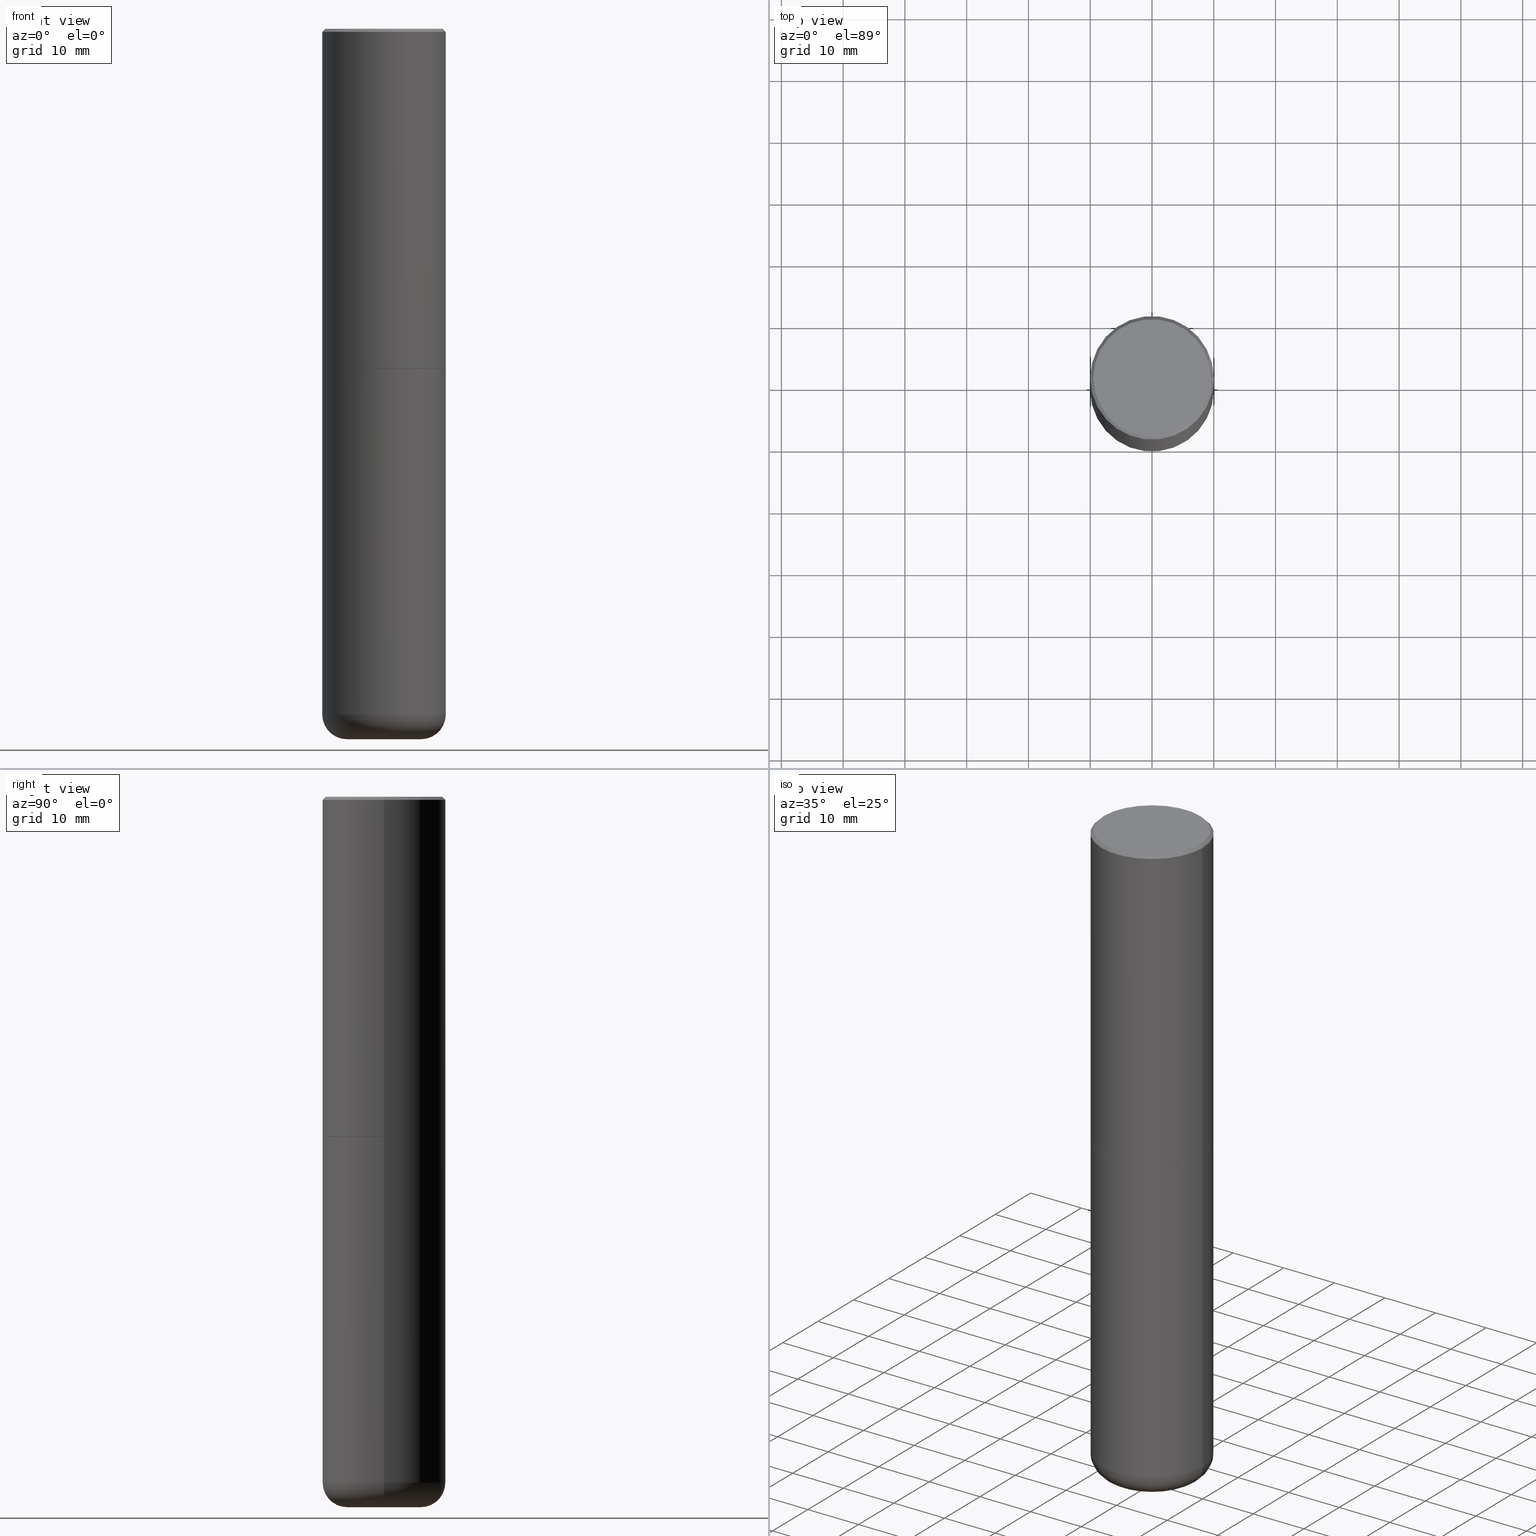
[diagram: canonical four-view strip — front | top / right | iso, engineering-drawing reading convention]
A machine part, canonical four-view strip (front | top / right | iso — engineering-drawing reading convention). The complete STEP part file that produces these views, byte-faithful:
ISO-10303-21;
HEADER;
FILE_DESCRIPTION (( 'STEP AP203' ),
    '1' );
FILE_NAME ('74836.STEP',
    '2024-05-02T19:22:35',
    ( '' ),
    ( '' ),
    'SwSTEP 2.0',
    'SolidWorks 2023',
    '' );
FILE_SCHEMA (( 'CONFIG_CONTROL_DESIGN' ));
ENDSEC;

DATA;
#1 = CIRCLE ( 'NONE', #383, 0.2362000000000000766 ) ;
#2 = EDGE_LOOP ( 'NONE', ( #82, #123, #97, #173 ) ) ;
#3 = APPROVAL_DATE_TIME ( #388, #62 ) ;
#4 = VERTEX_POINT ( 'NONE', #89 ) ;
#5 = CC_DESIGN_PERSON_AND_ORGANIZATION_ASSIGNMENT ( #322, #231, ( #57 ) ) ;
#6 = PLANE ( 'NONE',  #85 ) ;
#7 = FACE_OUTER_BOUND ( 'NONE', #393, .T. ) ;
#8 = DIRECTION ( 'NONE',  ( 1.000000000000000000, -6.982962677686269077E-15, 0.000000000000000000 ) ) ;
#9 = AXIS2_PLACEMENT_3D ( 'NONE', #187, #181, #296 ) ;
#10 = LOCAL_TIME ( 15, 22, 35.00000000000000000, #255 ) ;
#11 = CARTESIAN_POINT ( 'NONE',  ( 2.609533152651356620E-15, 0.3736999999999999211, -1.191650995338022328E-15 ) ) ;
#12 = CARTESIAN_POINT ( 'NONE',  ( -5.532412495976664402E-45, 7.898818803016371119E-31, 2.262311619753217762E-16 ) ) ;
#13 = CARTESIAN_POINT ( 'NONE',  ( 1.107210456688382298E-28, -1.580803090974622389E-14, -4.527599999999999625 ) ) ;
#14 = DIRECTION ( 'NONE',  ( -2.445468806185136877E-29, 3.491481338843145188E-15, 1.000000000000000000 ) ) ;
#15 = CYLINDRICAL_SURFACE ( 'NONE', #233, 0.3937000000000001054 ) ;
#16 = VERTEX_POINT ( 'NONE', #315 ) ;
#17 = DIRECTION ( 'NONE',  ( 1.000000000000000000, -6.982962677686265133E-15, 0.000000000000000000 ) ) ;
#18 = CLOSED_SHELL ( 'NONE', ( #286, #213, #94, #245, #154, #258 ) ) ;
#19 = LINE ( 'NONE', #23, #279 ) ;
#20 = CC_DESIGN_APPROVAL ( #253, ( #328 ) ) ;
#21 = ORGANIZATION ( 'UNSPECIFIED', 'UNSPECIFIED', '' ) ;
#22 = ORIENTED_EDGE ( 'NONE', *, *, #291, .F. ) ;
#23 = CARTESIAN_POINT ( 'NONE',  ( 0.3937000000000002164, -2.749192406205084794E-15, 1.919750796630861012E-29 ) ) ;
#24 = COORDINATED_UNIVERSAL_TIME_OFFSET ( 5, 0, .BEHIND. ) ;
#25 = ADVANCED_FACE ( 'NONE', ( #300 ), #56, .T. ) ;
#26 = ORIENTED_EDGE ( 'NONE', *, *, #291, .T. ) ;
#27 = ORIENTED_EDGE ( 'NONE', *, *, #122, .T. ) ;
#28 = CIRCLE ( 'NONE', #236, 0.1575000000000000566 ) ;
#29 = CC_DESIGN_PERSON_AND_ORGANIZATION_ASSIGNMENT ( #64, #293, ( #96 ) ) ;
#30 = EDGE_CURVE ( 'NONE', #4, #214, #251, .T. ) ;
#31 = DIRECTION ( 'NONE',  ( 1.000000000000000000, -6.982962677686261977E-15, 4.883557194083110659E-29 ) ) ;
#32 = CC_DESIGN_PERSON_AND_ORGANIZATION_ASSIGNMENT ( #222, #212, ( #328 ) ) ;
#33 = AXIS2_PLACEMENT_3D ( 'NONE', #51, #366, #116 ) ;
#34 = CARTESIAN_POINT ( 'NONE',  ( 1.068694322990966450E-28, -1.525812259887842897E-14, -4.370099999999998985 ) ) ;
#35 = VERTEX_POINT ( 'NONE', #42 ) ;
#36 =( CONVERSION_BASED_UNIT ( 'INCH', #194 ) LENGTH_UNIT ( ) NAMED_UNIT ( #128 ) );
#37 = CARTESIAN_POINT ( 'NONE',  ( 5.295418152913293224E-29, -7.560453691130945845E-15, -2.165399999999999547 ) ) ;
#38 = CC_DESIGN_DATE_AND_TIME_ASSIGNMENT ( #267, #168, ( #328 ) ) ;
#39 = AXIS2_PLACEMENT_3D ( 'NONE', #133, #335, #40 ) ;
#40 = DIRECTION ( 'NONE',  ( -1.000000000000000000, 6.982962677686266711E-15, 0.000000000000000000 ) ) ;
#41 = CIRCLE ( 'NONE', #205, 0.3937000000000001054 ) ;
#42 = CARTESIAN_POINT ( 'NONE',  ( -0.3937000000000002720, -1.015989167596965718E-15, -2.164399999999999658 ) ) ;
#43 = FACE_OUTER_BOUND ( 'NONE', #196, .T. ) ;
#44 = CARTESIAN_POINT ( 'NONE',  ( 0.3937000000000001054, -2.749192406205084005E-15, 1.919750796630860452E-29 ) ) ;
#45 = VERTEX_POINT ( 'NONE', #141 ) ;
#46 = ORIENTED_EDGE ( 'NONE', *, *, #104, .F. ) ;
#47 = DIRECTION ( 'NONE',  ( -2.445468806185136877E-29, 3.491481338843145188E-15, 1.000000000000000000 ) ) ;
#48 = ORIENTED_EDGE ( 'NONE', *, *, #283, .T. ) ;
#49 = CARTESIAN_POINT ( 'NONE',  ( -0.3937000000000001054, 2.679362779428220707E-15, -0.02000000000000008715 ) ) ;
#50 = CONICAL_SURFACE ( 'NONE', #9, 0.3937000000000001054, 0.7853981633974453924 ) ;
#51 = CARTESIAN_POINT ( 'NONE',  ( 4.890937612370294178E-31, -6.982962677686321191E-17, -0.02000000000000008715 ) ) ;
#52 = LOCAL_TIME ( 15, 22, 35.00000000000000000, #200 ) ;
#53 = EDGE_LOOP ( 'NONE', ( #150, #113, #147, #342 ) ) ;
#54 = DIRECTION ( 'NONE',  ( -2.445468806185136597E-29, 3.491481338843145583E-15, 1.000000000000000000 ) ) ;
#55 = EDGE_CURVE ( 'NONE', #238, #290, #400, .T. ) ;
#56 = CONICAL_SURFACE ( 'NONE', #379, 0.3926999999999999935, 0.7853981633975507526 ) ;
#57 = PRODUCT_DEFINITION_FORMATION_WITH_SPECIFIED_SOURCE ( 'ANY', '', #298, .NOT_KNOWN. ) ;
#58 = EDGE_CURVE ( 'NONE', #290, #238, #414, .T. ) ;
#59 = CALENDAR_DATE ( 2024, 2, 5 ) ;
#60 = CARTESIAN_POINT ( 'NONE',  ( 0.000000000000000000, 0.000000000000000000, 0.000000000000000000 ) ) ;
#61 = EDGE_CURVE ( 'NONE', #45, #354, #357, .T. ) ;
#62 = APPROVAL ( #321, 'UNSPECIFIED' ) ;
#63 = TOROIDAL_SURFACE ( 'NONE', #256, 0.2362000000000000210, 0.1575000000000000844 ) ;
#64 = PERSON_AND_ORGANIZATION ( #411, #21 ) ;
#65 = APPROVAL_ROLE ( '' ) ;
#66 = ORIENTED_EDGE ( 'NONE', *, *, #405, .T. ) ;
#67 = AXIS2_PLACEMENT_3D ( 'NONE', #201, #294, #8 ) ;
#68 = AXIS2_PLACEMENT_3D ( 'NONE', #216, #313, #280 ) ;
#69 = PLANE ( 'NONE',  #325 ) ;
#70 = ORIENTED_EDGE ( 'NONE', *, *, #235, .F. ) ;
#71 = CARTESIAN_POINT ( 'NONE',  ( -0.3937000000000001054, -1.246071584819091497E-14, -4.370099999999998985 ) ) ;
#72 = DIRECTION ( 'NONE',  ( -2.445468806185136597E-29, 3.491481338843145583E-15, 1.000000000000000000 ) ) ;
#73 = CARTESIAN_POINT ( 'NONE',  ( 0.3937000000000001054, -2.770807688499516128E-15, -0.02000000000000008715 ) ) ;
#74 = DESIGN_CONTEXT ( 'detailed design', #124, 'design' ) ;
#75 = FACE_OUTER_BOUND ( 'NONE', #131, .T. ) ;
#76 = AXIS2_PLACEMENT_3D ( 'NONE', #234, #323, #301 ) ;
#77 =( GEOMETRIC_REPRESENTATION_CONTEXT ( 3 ) GLOBAL_UNCERTAINTY_ASSIGNED_CONTEXT ( ( #134 ) ) GLOBAL_UNIT_ASSIGNED_CONTEXT ( ( #36, #382, #126 ) ) REPRESENTATION_CONTEXT ( 'NONE', 'WORKASPACE' ) );
#78 = LINE ( 'NONE', #208, #177 ) ;
#79 = CARTESIAN_POINT ( 'NONE',  ( -0.3937000000000001054, 2.679362779428220707E-15, -0.02000000000000008715 ) ) ;
#80 = ORIENTED_EDGE ( 'NONE', *, *, #223, .T. ) ;
#81 = ADVANCED_FACE ( 'NONE', ( #75 ), #6, .F. ) ;
#82 = ORIENTED_EDGE ( 'NONE', *, *, #240, .F. ) ;
#83 = DIRECTION ( 'NONE',  ( -6.982962677686266711E-15, -1.000000000000000000, 3.491481338843145583E-15 ) ) ;
#84 = VERTEX_POINT ( 'NONE', #71 ) ;
#85 = AXIS2_PLACEMENT_3D ( 'NONE', #11, #102, #359 ) ;
#86 = EDGE_LOOP ( 'NONE', ( #178, #375, #27, #378 ) ) ;
#87 = DIRECTION ( 'NONE',  ( 1.000000000000000000, -6.982962677686269077E-15, 0.000000000000000000 ) ) ;
#88 = ORIENTED_EDGE ( 'NONE', *, *, #61, .F. ) ;
#89 = CARTESIAN_POINT ( 'NONE',  ( 0.3736999999999999211, -2.667287895133367964E-15, 2.262311619753402158E-16 ) ) ;
#90 = CIRCLE ( 'NONE', #67, 0.3937000000000002720 ) ;
#91 = VECTOR ( 'NONE', #237, 39.37007874015748143 ) ;
#92 = EDGE_CURVE ( 'NONE', #35, #281, #90, .T. ) ;
#93 = DIRECTION ( 'NONE',  ( -2.445468806185136597E-29, 3.491481338843145583E-15, 1.000000000000000000 ) ) ;
#94 = ADVANCED_FACE ( 'NONE', ( #132 ), #361, .F. ) ;
#95 = AXIS2_PLACEMENT_3D ( 'NONE', #355, #169, #130 ) ;
#96 = SECURITY_CLASSIFICATION ( '', '', #127 ) ;
#97 = ORIENTED_EDGE ( 'NONE', *, *, #136, .T. ) ;
#98 = CALENDAR_DATE ( 2024, 2, 5 ) ;
#99 = DIRECTION ( 'NONE',  ( 1.000000000000000000, -6.982962677686268288E-15, 0.000000000000000000 ) ) ;
#100 = ORIENTED_EDGE ( 'NONE', *, *, #410, .T. ) ;
#101 = AXIS2_PLACEMENT_3D ( 'NONE', #60, #93, #149 ) ;
#102 = DIRECTION ( 'NONE',  ( 2.438088387897960049E-29, -3.491481338843145188E-15, -1.000000000000000000 ) ) ;
#103 = CARTESIAN_POINT ( 'NONE',  ( 1.068694322990966450E-28, -1.525812259887842897E-14, -4.370099999999998985 ) ) ;
#104 = EDGE_CURVE ( 'NONE', #193, #16, #220, .T. ) ;
#105 = CARTESIAN_POINT ( 'NONE',  ( 5.295418152913293224E-29, -7.560453691130945845E-15, -2.165399999999999547 ) ) ;
#106 = CARTESIAN_POINT ( 'NONE',  ( 0.2362000000000000210, -1.690749838334792550E-14, -4.370099999999998985 ) ) ;
#107 = CARTESIAN_POINT ( 'NONE',  ( 0.3926999999999999935, -1.030266313465834305E-14, -2.165399999999999547 ) ) ;
#108 = APPROVAL_STATUS ( 'not_yet_approved' ) ;
#109 = DIRECTION ( 'NONE',  ( -0.7071067811865454633, 2.468850131082235367E-15, -0.7071067811865495711 ) ) ;
#110 = EDGE_CURVE ( 'NONE', #214, #117, #369, .T. ) ;
#111 = AXIS2_PLACEMENT_3D ( 'NONE', #299, #271, #329 ) ;
#112 = DIRECTION ( 'NONE',  ( -2.445468806185136597E-29, 3.491481338843145583E-15, 1.000000000000000000 ) ) ;
#113 = ORIENTED_EDGE ( 'NONE', *, *, #92, .T. ) ;
#114 = DIRECTION ( 'NONE',  ( 1.000000000000000000, -6.982962677686261977E-15, 0.000000000000000000 ) ) ;
#115 = CARTESIAN_POINT ( 'NONE',  ( 0.3937000000000002720, -1.030615461599718763E-14, -2.164399999999999658 ) ) ;
#116 = DIRECTION ( 'NONE',  ( 1.000000000000000000, -6.982962677686266711E-15, 0.000000000000000000 ) ) ;
#117 = VERTEX_POINT ( 'NONE', #79 ) ;
#118 = ADVANCED_FACE ( 'NONE', ( #209 ), #50, .T. ) ;
#119 = CARTESIAN_POINT ( 'NONE',  ( -0.3926999999999999935, -4.764853913452808876E-15, -2.165399999999999547 ) ) ;
#120 = ORIENTED_EDGE ( 'NONE', *, *, #223, .F. ) ;
#121 = APPROVAL_STATUS ( 'not_yet_approved' ) ;
#122 = EDGE_CURVE ( 'NONE', #238, #281, #264, .T. ) ;
#123 = ORIENTED_EDGE ( 'NONE', *, *, #235, .T. ) ;
#124 = APPLICATION_CONTEXT ( 'configuration controlled 3d designs of mechanical parts and assemblies' ) ;
#125 = LOCAL_TIME ( 15, 22, 35.00000000000000000, #24 ) ;
#126 =( NAMED_UNIT ( * ) SI_UNIT ( $, .STERADIAN. ) SOLID_ANGLE_UNIT ( ) );
#127 = SECURITY_CLASSIFICATION_LEVEL ( 'unclassified' ) ;
#128 = DIMENSIONAL_EXPONENTS ( 1.000000000000000000, 0.000000000000000000, 0.000000000000000000, 0.000000000000000000, 0.000000000000000000, 0.000000000000000000, 0.000000000000000000 ) ;
#129 = CC_DESIGN_PERSON_AND_ORGANIZATION_ASSIGNMENT ( #312, #289, ( #298 ) ) ;
#130 = DIRECTION ( 'NONE',  ( 1.000000000000000000, -6.982962677686268288E-15, 0.000000000000000000 ) ) ;
#131 = EDGE_LOOP ( 'NONE', ( #26, #260 ) ) ;
#132 = FACE_OUTER_BOUND ( 'NONE', #339, .T. ) ;
#133 = CARTESIAN_POINT ( 'NONE',  ( 4.890937612370294178E-31, -6.982962677686321191E-17, -0.02000000000000008715 ) ) ;
#134 = UNCERTAINTY_MEASURE_WITH_UNIT (LENGTH_MEASURE( 1.000000000000000082E-05 ), #36, 'distance_accuracy_value', 'NONE');
#135 = CALENDAR_DATE ( 2024, 2, 5 ) ;
#136 = EDGE_CURVE ( 'NONE', #16, #45, #207, .T. ) ;
#137 = DIRECTION ( 'NONE',  ( -2.445468806185136597E-29, 3.491481338843145583E-15, 1.000000000000000000 ) ) ;
#138 = CARTESIAN_POINT ( 'NONE',  ( -0.2362000000000000210, -1.357982065701307100E-14, -4.370099999999998985 ) ) ;
#139 = CARTESIAN_POINT ( 'NONE',  ( -0.3926999999999999935, -4.770152367801032067E-15, -2.165399999999999547 ) ) ;
#140 = CLOSED_SHELL ( 'NONE', ( #190, #247, #118, #180, #167, #25, #317, #81 ) ) ;
#141 = CARTESIAN_POINT ( 'NONE',  ( 0.3937000000000000499, -1.030964609733602906E-14, -2.165399999999999547 ) ) ;
#142 = AXIS2_PLACEMENT_3D ( 'NONE', #341, #217, #145 ) ;
#143 = FACE_OUTER_BOUND ( 'NONE', #304, .T. ) ;
#144 = DIRECTION ( 'NONE',  ( -2.445468806185136877E-29, 3.491481338843145188E-15, 1.000000000000000000 ) ) ;
#145 = DIRECTION ( 'NONE',  ( 1.000000000000000000, -6.982962677686266711E-15, 4.877734241229876808E-29 ) ) ;
#146 = ORIENTED_EDGE ( 'NONE', *, *, #110, .F. ) ;
#147 = ORIENTED_EDGE ( 'NONE', *, *, #370, .T. ) ;
#148 = COORDINATED_UNIVERSAL_TIME_OFFSET ( 5, 0, .BEHIND. ) ;
#149 = DIRECTION ( 'NONE',  ( 1.000000000000000000, -6.982962677686266711E-15, 4.876176775795935793E-29 ) ) ;
#150 = ORIENTED_EDGE ( 'NONE', *, *, #405, .F. ) ;
#151 = VECTOR ( 'NONE', #109, 39.37007874015748143 ) ;
#152 = EDGE_LOOP ( 'NONE', ( #401, #337, #284, #146 ) ) ;
#153 = DIRECTION ( 'NONE',  ( 1.000000000000000000, 0.000000000000000000, 0.000000000000000000 ) ) ;
#154 = ADVANCED_FACE ( 'NONE', ( #170 ), #63, .T. ) ;
#155 = ORIENTED_EDGE ( 'NONE', *, *, #240, .T. ) ;
#156 = CARTESIAN_POINT ( 'NONE',  ( 1.068694322990966450E-28, -1.525812259887842897E-14, -4.370099999999998985 ) ) ;
#157 = CARTESIAN_POINT ( 'NONE',  ( 0.000000000000000000, 0.000000000000000000, 0.000000000000000000 ) ) ;
#158 = AXIS2_PLACEMENT_3D ( 'NONE', #106, #83, #340 ) ;
#159 = APPROVAL_PERSON_ORGANIZATION ( #418, #62, #65 ) ;
#160 = CALENDAR_DATE ( 2024, 2, 5 ) ;
#161 = EDGE_LOOP ( 'NONE', ( #386, #248 ) ) ;
#162 = ORIENTED_EDGE ( 'NONE', *, *, #387, .F. ) ;
#163 = AXIS2_PLACEMENT_3D ( 'NONE', #206, #195, #204 ) ;
#164 = EDGE_CURVE ( 'NONE', #4, #288, #417, .T. ) ;
#165 = DIRECTION ( 'NONE',  ( 2.438088387897960049E-29, -3.491481338843145188E-15, -1.000000000000000000 ) ) ;
#166 = APPROVAL_DATE_TIME ( #171, #311 ) ;
#167 = ADVANCED_FACE ( 'NONE', ( #198 ), #399, .T. ) ;
#168 = DATE_TIME_ROLE ( 'creation_date' ) ;
#169 = DIRECTION ( 'NONE',  ( -2.445468806185136597E-29, 3.491481338843145583E-15, 1.000000000000000000 ) ) ;
#170 = FACE_OUTER_BOUND ( 'NONE', #230, .T. ) ;
#171 = DATE_AND_TIME ( #175, #52 ) ;
#172 = CARTESIAN_POINT ( 'NONE',  ( 1.068694322990966450E-28, -1.525812259887842897E-14, -4.370099999999998985 ) ) ;
#173 = ORIENTED_EDGE ( 'NONE', *, *, #219, .F. ) ;
#174 = LINE ( 'NONE', #182, #358 ) ;
#175 = CALENDAR_DATE ( 2024, 2, 5 ) ;
#176 = CARTESIAN_POINT ( 'NONE',  ( -0.2362000000000000766, -1.329522240803589203E-14, -4.527599999999999625 ) ) ;
#177 = VECTOR ( 'NONE', #14, 39.37007874015748143 ) ;
#178 = ORIENTED_EDGE ( 'NONE', *, *, #302, .F. ) ;
#179 = ORIENTED_EDGE ( 'NONE', *, *, #136, .F. ) ;
#180 = ADVANCED_FACE ( 'NONE', ( #292 ), #225, .T. ) ;
#181 = DIRECTION ( 'NONE',  ( 2.445468806185136597E-29, -3.491481338843145583E-15, -1.000000000000000000 ) ) ;
#182 = CARTESIAN_POINT ( 'NONE',  ( -0.3937000000000001054, 2.797406750687515181E-15, -1.936584745033357016E-29 ) ) ;
#183 = EDGE_LOOP ( 'NONE', ( #407, #120 ) ) ;
#184 = ORIENTED_EDGE ( 'NONE', *, *, #104, .T. ) ;
#185 = CIRCLE ( 'NONE', #385, 0.2362000000000000766 ) ;
#186 = DATE_AND_TIME ( #59, #125 ) ;
#187 = CARTESIAN_POINT ( 'NONE',  ( 4.890937612370294178E-31, -6.982962677686321191E-17, -0.02000000000000008715 ) ) ;
#188 = DIRECTION ( 'NONE',  ( -1.000000000000000000, 7.105427357601006592E-15, 0.000000000000000000 ) ) ;
#189 = AXIS2_PLACEMENT_3D ( 'NONE', #37, #389, #17 ) ;
#190 = ADVANCED_FACE ( 'NONE', ( #7 ), #324, .T. ) ;
#191 = SHAPE_DEFINITION_REPRESENTATION ( #376, #277 ) ;
#192 = CC_DESIGN_PERSON_AND_ORGANIZATION_ASSIGNMENT ( #356, #353, ( #57 ) ) ;
#193 = VERTEX_POINT ( 'NONE', #263 ) ;
#194 = LENGTH_MEASURE_WITH_UNIT ( LENGTH_MEASURE( 0.02539999999999999897 ), #254 );
#195 = DIRECTION ( 'NONE',  ( -2.445468806185136597E-29, 3.491481338843145583E-15, 1.000000000000000000 ) ) ;
#196 = EDGE_LOOP ( 'NONE', ( #310, #100, #162, #46 ) ) ;
#197 = APPROVAL_PERSON_ORGANIZATION ( #250, #253, #350 ) ;
#198 = FACE_OUTER_BOUND ( 'NONE', #53, .T. ) ;
#199 = CARTESIAN_POINT ( 'NONE',  ( 5.295418152913293224E-29, -7.560453691130945845E-15, -2.165399999999999547 ) ) ;
#200 = COORDINATED_UNIVERSAL_TIME_OFFSET ( 5, 0, .BEHIND. ) ;
#201 = CARTESIAN_POINT ( 'NONE',  ( 5.292972684107107621E-29, -7.556962209792102838E-15, -2.164399999999999658 ) ) ;
#202 = DIRECTION ( 'NONE',  ( 1.000000000000000000, -6.982962677686261977E-15, 0.000000000000000000 ) ) ;
#203 = DIRECTION ( 'NONE',  ( 1.000000000000000000, -6.982962677686268288E-15, 0.000000000000000000 ) ) ;
#204 = DIRECTION ( 'NONE',  ( 1.000000000000000000, -6.982962677686266711E-15, 4.876176775795935793E-29 ) ) ;
#205 = AXIS2_PLACEMENT_3D ( 'NONE', #406, #275, #377 ) ;
#206 = CARTESIAN_POINT ( 'NONE',  ( 0.000000000000000000, 0.000000000000000000, 0.000000000000000000 ) ) ;
#207 = LINE ( 'NONE', #44, #319 ) ;
#208 = CARTESIAN_POINT ( 'NONE',  ( -0.3937000000000002164, 2.797406750687515970E-15, -1.936584745033357576E-29 ) ) ;
#209 = FACE_OUTER_BOUND ( 'NONE', #152, .T. ) ;
#210 = EDGE_LOOP ( 'NONE', ( #274, #22, #228, #276 ) ) ;
#211 = CARTESIAN_POINT ( 'NONE',  ( 1.107210456688382298E-28, -1.580803090974622389E-14, -4.527599999999999625 ) ) ;
#212 = PERSON_AND_ORGANIZATION_ROLE ( 'creator' ) ;
#213 = ADVANCED_FACE ( 'NONE', ( #43 ), #278, .T. ) ;
#214 = VERTEX_POINT ( 'NONE', #391 ) ;
#215 = CC_DESIGN_SECURITY_CLASSIFICATION ( #96, ( #57 ) ) ;
#216 = CARTESIAN_POINT ( 'NONE',  ( 1.107210456688382298E-28, -1.580803090974622389E-14, -4.527599999999999625 ) ) ;
#217 = DIRECTION ( 'NONE',  ( -2.445468806185136597E-29, 3.491481338843145583E-15, 1.000000000000000000 ) ) ;
#218 = ORIENTED_EDGE ( 'NONE', *, *, #387, .T. ) ;
#219 = EDGE_CURVE ( 'NONE', #354, #45, #365, .T. ) ;
#220 = CIRCLE ( 'NONE', #158, 0.1575000000000000566 ) ;
#221 = AXIS2_PLACEMENT_3D ( 'NONE', #367, #303, #87 ) ;
#222 = PERSON_AND_ORGANIZATION ( #411, #21 ) ;
#223 = EDGE_CURVE ( 'NONE', #368, #193, #1, .T. ) ;
#224 = DIRECTION ( 'NONE',  ( -2.445468806185136597E-29, 3.491481338843145583E-15, 1.000000000000000000 ) ) ;
#225 = CONICAL_SURFACE ( 'NONE', #39, 0.3937000000000001054, 0.7853981633974453924 ) ;
#226 = CIRCLE ( 'NONE', #142, 0.3736999999999999211 ) ;
#227 = DATE_AND_TIME ( #160, #10 ) ;
#228 = ORIENTED_EDGE ( 'NONE', *, *, #110, .T. ) ;
#229 = DIRECTION ( 'NONE',  ( 1.000000000000000000, -6.982962677686261977E-15, 4.883557194083110659E-29 ) ) ;
#230 = EDGE_LOOP ( 'NONE', ( #344, #80, #184, #70 ) ) ;
#231 = PERSON_AND_ORGANIZATION_ROLE ( 'design_supplier' ) ;
#232 = AXIS2_PLACEMENT_3D ( 'NONE', #331, #165, #397 ) ;
#233 = AXIS2_PLACEMENT_3D ( 'NONE', #345, #54, #372 ) ;
#234 = CARTESIAN_POINT ( 'NONE',  ( 5.295418152913293224E-29, -7.560453691130945845E-15, -2.165399999999999547 ) ) ;
#235 = EDGE_CURVE ( 'NONE', #84, #16, #314, .T. ) ;
#236 = AXIS2_PLACEMENT_3D ( 'NONE', #138, #268, #188 ) ;
#237 = DIRECTION ( 'NONE',  ( -0.7071067811866199593, 7.493145998870616062E-15, 0.7071067811864750752 ) ) ;
#238 = VERTEX_POINT ( 'NONE', #330 ) ;
#239 = CARTESIAN_POINT ( 'NONE',  ( 5.295418152913293224E-29, -7.560453691130945845E-15, -2.165399999999999547 ) ) ;
#240 = EDGE_CURVE ( 'NONE', #84, #354, #174, .T. ) ;
#241 = CYLINDRICAL_SURFACE ( 'NONE', #343, 0.3937000000000002164 ) ;
#242 = FACE_OUTER_BOUND ( 'NONE', #336, .T. ) ;
#243 = ORIENTED_EDGE ( 'NONE', *, *, #219, .T. ) ;
#244 = AXIS2_PLACEMENT_3D ( 'NONE', #157, #381, #153 ) ;
#245 = ADVANCED_FACE ( 'NONE', ( #408 ), #416, .T. ) ;
#246 = PLANE ( 'NONE',  #68 ) ;
#247 = ADVANCED_FACE ( 'NONE', ( #143 ), #241, .T. ) ;
#248 = ORIENTED_EDGE ( 'NONE', *, *, #58, .F. ) ;
#249 = APPROVAL_ROLE ( '' ) ;
#250 = PERSON_AND_ORGANIZATION ( #411, #21 ) ;
#251 = CIRCLE ( 'NONE', #374, 0.3736999999999999211 ) ;
#252 = CIRCLE ( 'NONE', #221, 0.3937000000000002720 ) ;
#253 = APPROVAL ( #121, 'UNSPECIFIED' ) ;
#254 =( LENGTH_UNIT ( ) NAMED_UNIT ( * ) SI_UNIT ( $, .METRE. ) );
#255 = COORDINATED_UNIVERSAL_TIME_OFFSET ( 5, 0, .BEHIND. ) ;
#256 = AXIS2_PLACEMENT_3D ( 'NONE', #156, #285, #31 ) ;
#257 = CIRCLE ( 'NONE', #307, 0.3937000000000001054 ) ;
#258 = ADVANCED_FACE ( 'NONE', ( #309 ), #246, .T. ) ;
#259 = APPLICATION_CONTEXT ( 'configuration controlled 3d designs of mechanical parts and assemblies' ) ;
#260 = ORIENTED_EDGE ( 'NONE', *, *, #30, .T. ) ;
#261 = ORIENTED_EDGE ( 'NONE', *, *, #61, .T. ) ;
#262 = LOCAL_TIME ( 15, 22, 35.00000000000000000, #394 ) ;
#263 = CARTESIAN_POINT ( 'NONE',  ( 0.2362000000000000766, -1.745740669421572042E-14, -4.527599999999999625 ) ) ;
#264 = LINE ( 'NONE', #107, #390 ) ;
#265 = DIRECTION ( 'NONE',  ( 1.000000000000000000, -6.982962677686266711E-15, 4.877734241229876808E-29 ) ) ;
#266 = DIRECTION ( 'NONE',  ( 1.000000000000000000, -6.982962677686265922E-15, 4.876176775795935793E-29 ) ) ;
#267 = DATE_AND_TIME ( #135, #349 ) ;
#268 = DIRECTION ( 'NONE',  ( 7.105427357601001859E-15, 1.000000000000000000, -3.491481338843145583E-15 ) ) ;
#269 = FACE_OUTER_BOUND ( 'NONE', #161, .T. ) ;
#270 = EDGE_CURVE ( 'NONE', #288, #117, #41, .T. ) ;
#271 = DIRECTION ( 'NONE',  ( -2.445468806185136597E-29, 3.491481338843145583E-15, 1.000000000000000000 ) ) ;
#272 = CARTESIAN_POINT ( 'NONE',  ( -0.3937000000000000499, -8.611881394317173410E-15, -2.165399999999999547 ) ) ;
#273 = CARTESIAN_POINT ( 'NONE',  ( 0.000000000000000000, 0.000000000000000000, 0.000000000000000000 ) ) ;
#274 = ORIENTED_EDGE ( 'NONE', *, *, #164, .F. ) ;
#275 = DIRECTION ( 'NONE',  ( -2.445468806185136597E-29, 3.491481338843145583E-15, 1.000000000000000000 ) ) ;
#276 = ORIENTED_EDGE ( 'NONE', *, *, #346, .T. ) ;
#277 = ADVANCED_BREP_SHAPE_REPRESENTATION ( '74836', ( #316, #308, #244 ), #77 ) ;
#278 = TOROIDAL_SURFACE ( 'NONE', #333, 0.2362000000000000210, 0.1575000000000000844 ) ;
#279 = VECTOR ( 'NONE', #144, 39.37007874015748143 ) ;
#280 = DIRECTION ( 'NONE',  ( -1.000000000000000000, 6.982962677686265922E-15, -4.876176775795935793E-29 ) ) ;
#281 = VERTEX_POINT ( 'NONE', #115 ) ;
#282 = APPLICATION_PROTOCOL_DEFINITION ( 'international standard', 'config_control_design', 1994, #259 ) ;
#283 = EDGE_CURVE ( 'NONE', #281, #35, #252, .T. ) ;
#284 = ORIENTED_EDGE ( 'NONE', *, *, #270, .T. ) ;
#285 = DIRECTION ( 'NONE',  ( -2.445468806185136597E-29, 3.491481338843145583E-15, 1.000000000000000000 ) ) ;
#286 = ADVANCED_FACE ( 'NONE', ( #242 ), #15, .T. ) ;
#287 = AXIS2_PLACEMENT_3D ( 'NONE', #34, #72, #202 ) ;
#288 = VERTEX_POINT ( 'NONE', #409 ) ;
#289 = PERSON_AND_ORGANIZATION_ROLE ( 'design_owner' ) ;
#290 = VERTEX_POINT ( 'NONE', #119 ) ;
#291 = EDGE_CURVE ( 'NONE', #214, #4, #226, .T. ) ;
#292 = FACE_OUTER_BOUND ( 'NONE', #210, .T. ) ;
#293 = PERSON_AND_ORGANIZATION_ROLE ( 'classification_officer' ) ;
#294 = DIRECTION ( 'NONE',  ( -2.445468806185136597E-29, 3.491481338843145583E-15, 1.000000000000000000 ) ) ;
#295 = DIRECTION ( 'NONE',  ( 0.7071067811865454633, -7.319954787623248157E-15, -0.7071067811865495711 ) ) ;
#296 = DIRECTION ( 'NONE',  ( -1.000000000000000000, 6.982962677686266711E-15, 0.000000000000000000 ) ) ;
#297 = AXIS2_PLACEMENT_3D ( 'NONE', #239, #305, #203 ) ;
#298 = PRODUCT ( '74836', '74836', '', ( #351 ) ) ;
#299 = CARTESIAN_POINT ( 'NONE',  ( 5.295418152913293224E-29, -7.560453691130945845E-15, -2.165399999999999547 ) ) ;
#300 = FACE_OUTER_BOUND ( 'NONE', #86, .T. ) ;
#301 = DIRECTION ( 'NONE',  ( 1.000000000000000000, -6.982962677686265133E-15, 0.000000000000000000 ) ) ;
#302 = EDGE_CURVE ( 'NONE', #290, #35, #348, .T. ) ;
#303 = DIRECTION ( 'NONE',  ( -2.445468806185136597E-29, 3.491481338843145583E-15, 1.000000000000000000 ) ) ;
#304 = EDGE_LOOP ( 'NONE', ( #48, #66, #347, #306 ) ) ;
#305 = DIRECTION ( 'NONE',  ( -2.445468806185136597E-29, 3.491481338843145583E-15, 1.000000000000000000 ) ) ;
#306 = ORIENTED_EDGE ( 'NONE', *, *, #370, .F. ) ;
#307 = AXIS2_PLACEMENT_3D ( 'NONE', #172, #403, #114 ) ;
#308 = MANIFOLD_SOLID_BREP ( 'Body-Move/Copy2[2]', #140 ) ;
#309 = FACE_OUTER_BOUND ( 'NONE', #183, .T. ) ;
#310 = ORIENTED_EDGE ( 'NONE', *, *, #396, .T. ) ;
#311 = APPROVAL ( #108, 'UNSPECIFIED' ) ;
#312 = PERSON_AND_ORGANIZATION ( #411, #21 ) ;
#313 = DIRECTION ( 'NONE',  ( 2.438088387897960049E-29, -3.491481338843145188E-15, -1.000000000000000000 ) ) ;
#314 = CIRCLE ( 'NONE', #287, 0.3937000000000001054 ) ;
#315 = CARTESIAN_POINT ( 'NONE',  ( 0.3937000000000001054, -1.800731500508351219E-14, -4.370099999999998985 ) ) ;
#316 = MANIFOLD_SOLID_BREP ( 'Body-Move/Copy2[1]', #18 ) ;
#317 = ADVANCED_FACE ( 'NONE', ( #269 ), #69, .F. ) ;
#318 = APPROVAL_DATE_TIME ( #186, #253 ) ;
#319 = VECTOR ( 'NONE', #47, 39.37007874015748143 ) ;
#320 = APPLICATION_PROTOCOL_DEFINITION ( 'international standard', 'config_control_design', 1994, #124 ) ;
#321 = APPROVAL_STATUS ( 'not_yet_approved' ) ;
#322 = PERSON_AND_ORGANIZATION ( #411, #21 ) ;
#323 = DIRECTION ( 'NONE',  ( -2.445468806185136597E-29, 3.491481338843145583E-15, 1.000000000000000000 ) ) ;
#324 = CONICAL_SURFACE ( 'NONE', #95, 0.3926999999999999935, 0.7853981633975507526 ) ;
#325 = AXIS2_PLACEMENT_3D ( 'NONE', #199, #326, #266 ) ;
#326 = DIRECTION ( 'NONE',  ( -2.438088387897960049E-29, 3.491481338843145188E-15, 1.000000000000000000 ) ) ;
#327 = ORIENTED_EDGE ( 'NONE', *, *, #283, .F. ) ;
#328 = PRODUCT_DEFINITION ( 'UNKNOWN', '', #57, #74 ) ;
#329 = DIRECTION ( 'NONE',  ( 1.000000000000000000, -6.982962677686268288E-15, 0.000000000000000000 ) ) ;
#330 = CARTESIAN_POINT ( 'NONE',  ( 0.3926999999999999935, -1.030266313465834305E-14, -2.165399999999999547 ) ) ;
#331 = CARTESIAN_POINT ( 'NONE',  ( 5.295418152913293224E-29, -7.560453691130945845E-15, -2.165399999999999547 ) ) ;
#332 = DIRECTION ( 'NONE',  ( -2.445468806185136597E-29, 3.491481338843145583E-15, 1.000000000000000000 ) ) ;
#333 = AXIS2_PLACEMENT_3D ( 'NONE', #103, #395, #229 ) ;
#334 = APPROVAL_PERSON_ORGANIZATION ( #398, #311, #249 ) ;
#335 = DIRECTION ( 'NONE',  ( 2.445468806185136597E-29, -3.491481338843145583E-15, -1.000000000000000000 ) ) ;
#336 = EDGE_LOOP ( 'NONE', ( #218, #155, #88, #179 ) ) ;
#337 = ORIENTED_EDGE ( 'NONE', *, *, #164, .T. ) ;
#338 = PRODUCT_RELATED_PRODUCT_CATEGORY ( 'detail', '', ( #298 ) ) ;
#339 = EDGE_LOOP ( 'NONE', ( #261, #243 ) ) ;
#340 = DIRECTION ( 'NONE',  ( 1.000000000000000000, -6.982962677686259611E-15, 0.000000000000000000 ) ) ;
#341 = CARTESIAN_POINT ( 'NONE',  ( -5.532412495976664402E-45, 7.898818803016371119E-31, 2.262311619753217762E-16 ) ) ;
#342 = ORIENTED_EDGE ( 'NONE', *, *, #346, .F. ) ;
#343 = AXIS2_PLACEMENT_3D ( 'NONE', #273, #112, #404 ) ;
#344 = ORIENTED_EDGE ( 'NONE', *, *, #410, .F. ) ;
#345 = CARTESIAN_POINT ( 'NONE',  ( 0.000000000000000000, 0.000000000000000000, 0.000000000000000000 ) ) ;
#346 = EDGE_CURVE ( 'NONE', #117, #288, #380, .T. ) ;
#347 = ORIENTED_EDGE ( 'NONE', *, *, #270, .F. ) ;
#348 = LINE ( 'NONE', #139, #91 ) ;
#349 = LOCAL_TIME ( 15, 22, 35.00000000000000000, #148 ) ;
#350 = APPROVAL_ROLE ( '' ) ;
#351 = MECHANICAL_CONTEXT ( 'NONE', #259, 'mechanical' ) ;
#352 = VECTOR ( 'NONE', #295, 39.37007874015748143 ) ;
#353 = PERSON_AND_ORGANIZATION_ROLE ( 'creator' ) ;
#354 = VERTEX_POINT ( 'NONE', #272 ) ;
#355 = CARTESIAN_POINT ( 'NONE',  ( 5.295418152913293224E-29, -7.560453691130945845E-15, -2.165399999999999547 ) ) ;
#356 = PERSON_AND_ORGANIZATION ( #411, #21 ) ;
#357 = CIRCLE ( 'NONE', #189, 0.3937000000000000499 ) ;
#358 = VECTOR ( 'NONE', #371, 39.37007874015748143 ) ;
#359 = DIRECTION ( 'NONE',  ( -1.000000000000000000, 6.982962677686265922E-15, -4.876176775795935793E-29 ) ) ;
#360 = DIRECTION ( 'NONE',  ( 1.000000000000000000, -6.982962677686262766E-15, 0.000000000000000000 ) ) ;
#361 = PLANE ( 'NONE',  #232 ) ;
#362 = DIRECTION ( 'NONE',  ( -2.445468806185136597E-29, 3.491481338843145583E-15, 1.000000000000000000 ) ) ;
#363 = DIRECTION ( 'NONE',  ( 0.7071067811866199593, -2.468850131083015945E-15, 0.7071067811864750752 ) ) ;
#364 = DIRECTION ( 'NONE',  ( 1.000000000000000000, -6.982962677686262766E-15, 0.000000000000000000 ) ) ;
#365 = CIRCLE ( 'NONE', #76, 0.3937000000000000499 ) ;
#366 = DIRECTION ( 'NONE',  ( -2.445468806185136597E-29, 3.491481338843145583E-15, 1.000000000000000000 ) ) ;
#367 = CARTESIAN_POINT ( 'NONE',  ( 5.292972684107107621E-29, -7.556962209792102838E-15, -2.164399999999999658 ) ) ;
#368 = VERTEX_POINT ( 'NONE', #176 ) ;
#369 = LINE ( 'NONE', #49, #151 ) ;
#370 = EDGE_CURVE ( 'NONE', #281, #288, #19, .T. ) ;
#371 = DIRECTION ( 'NONE',  ( -2.445468806185136877E-29, 3.491481338843145188E-15, 1.000000000000000000 ) ) ;
#372 = DIRECTION ( 'NONE',  ( 1.000000000000000000, -6.982962677686266711E-15, 4.876176775795935793E-29 ) ) ;
#373 = ORIENTED_EDGE ( 'NONE', *, *, #55, .T. ) ;
#374 = AXIS2_PLACEMENT_3D ( 'NONE', #12, #362, #265 ) ;
#375 = ORIENTED_EDGE ( 'NONE', *, *, #58, .T. ) ;
#376 = PRODUCT_DEFINITION_SHAPE ( 'NONE', 'NONE',  #328 ) ;
#377 = DIRECTION ( 'NONE',  ( 1.000000000000000000, -6.982962677686266711E-15, 0.000000000000000000 ) ) ;
#378 = ORIENTED_EDGE ( 'NONE', *, *, #92, .F. ) ;
#379 = AXIS2_PLACEMENT_3D ( 'NONE', #105, #224, #99 ) ;
#380 = CIRCLE ( 'NONE', #33, 0.3937000000000001054 ) ;
#381 = DIRECTION ( 'NONE',  ( 0.000000000000000000, 0.000000000000000000, 1.000000000000000000 ) ) ;
#382 =( NAMED_UNIT ( * ) PLANE_ANGLE_UNIT ( ) SI_UNIT ( $, .RADIAN. ) );
#383 = AXIS2_PLACEMENT_3D ( 'NONE', #13, #137, #360 ) ;
#384 = DATE_TIME_ROLE ( 'classification_date' ) ;
#385 = AXIS2_PLACEMENT_3D ( 'NONE', #211, #332, #364 ) ;
#386 = ORIENTED_EDGE ( 'NONE', *, *, #55, .F. ) ;
#387 = EDGE_CURVE ( 'NONE', #16, #84, #257, .T. ) ;
#388 = DATE_AND_TIME ( #98, #262 ) ;
#389 = DIRECTION ( 'NONE',  ( -2.445468806185136597E-29, 3.491481338843145583E-15, 1.000000000000000000 ) ) ;
#390 = VECTOR ( 'NONE', #363, 39.37007874015748143 ) ;
#391 = CARTESIAN_POINT ( 'NONE',  ( -0.3736999999999999211, 2.644447966039789453E-15, 2.262311619753034352E-16 ) ) ;
#392 = CC_DESIGN_APPROVAL ( #62, ( #96 ) ) ;
#393 = EDGE_LOOP ( 'NONE', ( #373, #402, #327, #413 ) ) ;
#394 = COORDINATED_UNIVERSAL_TIME_OFFSET ( 5, 0, .BEHIND. ) ;
#395 = DIRECTION ( 'NONE',  ( -2.445468806185136597E-29, 3.491481338843145583E-15, 1.000000000000000000 ) ) ;
#396 = EDGE_CURVE ( 'NONE', #193, #368, #185, .T. ) ;
#397 = DIRECTION ( 'NONE',  ( -1.000000000000000000, 6.982962677686265922E-15, -4.876176775795935793E-29 ) ) ;
#398 = PERSON_AND_ORGANIZATION ( #411, #21 ) ;
#399 = CYLINDRICAL_SURFACE ( 'NONE', #163, 0.3937000000000002164 ) ;
#400 = CIRCLE ( 'NONE', #111, 0.3926999999999999935 ) ;
#401 = ORIENTED_EDGE ( 'NONE', *, *, #30, .F. ) ;
#402 = ORIENTED_EDGE ( 'NONE', *, *, #302, .T. ) ;
#403 = DIRECTION ( 'NONE',  ( -2.445468806185136597E-29, 3.491481338843145583E-15, 1.000000000000000000 ) ) ;
#404 = DIRECTION ( 'NONE',  ( 1.000000000000000000, -6.982962677686266711E-15, 4.876176775795935793E-29 ) ) ;
#405 = EDGE_CURVE ( 'NONE', #35, #117, #78, .T. ) ;
#406 = CARTESIAN_POINT ( 'NONE',  ( 4.890937612370294178E-31, -6.982962677686321191E-17, -0.02000000000000008715 ) ) ;
#407 = ORIENTED_EDGE ( 'NONE', *, *, #396, .F. ) ;
#408 = FACE_OUTER_BOUND ( 'NONE', #2, .T. ) ;
#409 = CARTESIAN_POINT ( 'NONE',  ( 0.3937000000000001054, -2.770807688499516128E-15, -0.02000000000000008715 ) ) ;
#410 = EDGE_CURVE ( 'NONE', #368, #84, #28, .T. ) ;
#411 = PERSON ( 'UNSPECIFIED', 'UNSPECIFIED', 'UNSPECIFIED', ('UNSPECIFIED'), ('UNSPECIFIED'), ('UNSPECIFIED') ) ;
#412 = CC_DESIGN_DATE_AND_TIME_ASSIGNMENT ( #227, #384, ( #96 ) ) ;
#413 = ORIENTED_EDGE ( 'NONE', *, *, #122, .F. ) ;
#414 = CIRCLE ( 'NONE', #297, 0.3926999999999999935 ) ;
#415 = CC_DESIGN_APPROVAL ( #311, ( #57 ) ) ;
#416 = CYLINDRICAL_SURFACE ( 'NONE', #101, 0.3937000000000001054 ) ;
#417 = LINE ( 'NONE', #73, #352 ) ;
#418 = PERSON_AND_ORGANIZATION ( #411, #21 ) ;
ENDSEC;
END-ISO-10303-21;
